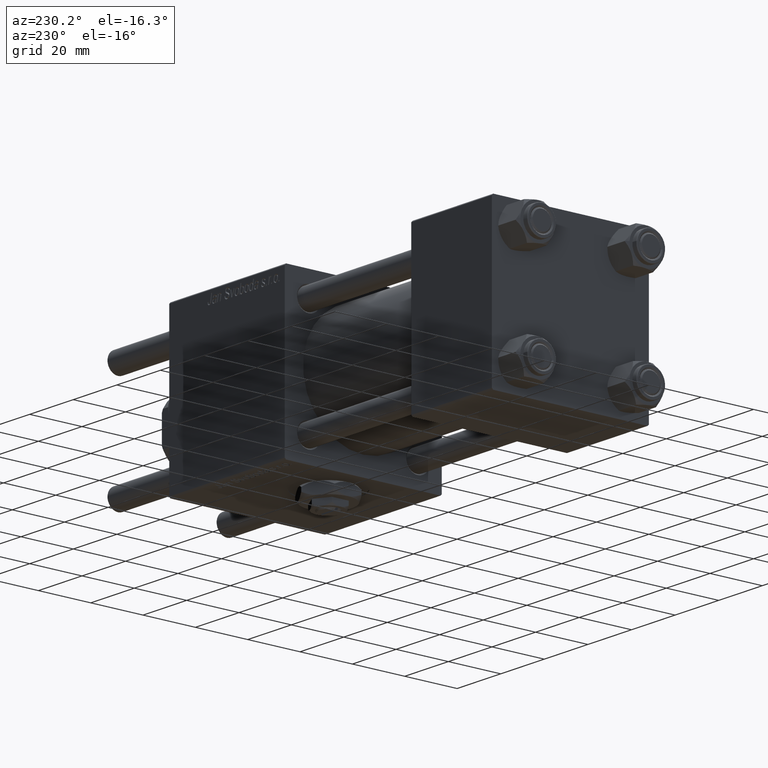
[diagram: clean part render]
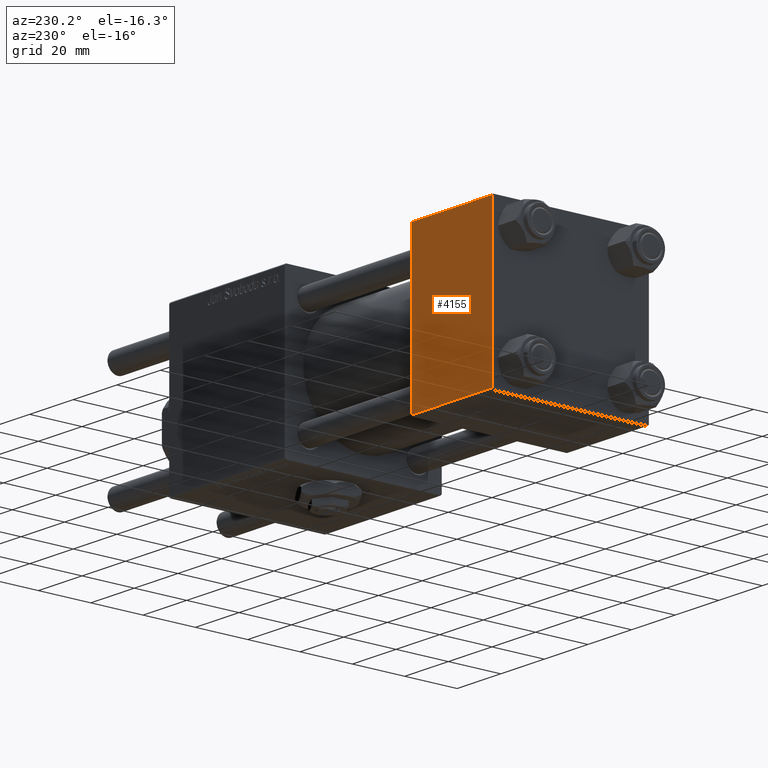
[diagram: same view with one face highlighted and labeled with its STEP entity id]
A machine part, auxiliary view. The second image highlights one B-rep face of the part: STEP entity #4155.
In plain terms, the highlighted planar face has unit normal (0, 1, 0).
Its self-contained STEP definition (entity closure, byte-faithful):
#1548 = LINE ( 'NONE', #46809, #37286 ) ;
#2855 = LINE ( 'NONE', #43997, #46002 ) ;
#3163 = CARTESIAN_POINT ( 'NONE',  ( 37.00000000000000000, 29.99999999999999289, 29.50000000000000000 ) ) ;
#4155 = ADVANCED_FACE ( 'NONE', ( #55867 ), #6150, .T. ) ;
#5976 = DIRECTION ( 'NONE',  ( 0.000000000000000000, 0.000000000000000000, -1.000000000000000000 ) ) ;
#6150 = PLANE ( 'NONE',  #21051 ) ;
#8192 = CARTESIAN_POINT ( 'NONE',  ( 37.00000000000000000, 29.99999999999999289, -29.50000000000000000 ) ) ;
#16016 = VERTEX_POINT ( 'NONE', #54293 ) ;
#17216 = EDGE_CURVE ( 'NONE', #48268, #33548, #1548, .T. ) ;
#17550 = CARTESIAN_POINT ( 'NONE',  ( 37.00000000000000000, 29.99999999999999289, 29.50000000000000000 ) ) ;
#18920 = EDGE_CURVE ( 'NONE', #33548, #20743, #57911, .T. ) ;
#19180 = CARTESIAN_POINT ( 'NONE',  ( 37.00000000000000000, 29.99999999999999289, 30.00000000000000000 ) ) ;
#20743 = VERTEX_POINT ( 'NONE', #48618 ) ;
#20761 = VECTOR ( 'NONE', #21817, 1000.000000000000000 ) ;
#21051 = AXIS2_PLACEMENT_3D ( 'NONE', #19180, #51136, #23930 ) ;
#21817 = DIRECTION ( 'NONE',  ( 1.000000000000000000, 0.000000000000000000, 0.000000000000000000 ) ) ;
#23476 = EDGE_CURVE ( 'NONE', #16016, #20743, #2855, .T. ) ;
#23930 = DIRECTION ( 'NONE',  ( 0.000000000000000000, -0.000000000000000000, 1.000000000000000000 ) ) ;
#26269 = LINE ( 'NONE', #3163, #20761 ) ;
#30676 = DIRECTION ( 'NONE',  ( 0.000000000000000000, 0.000000000000000000, -1.000000000000000000 ) ) ;
#31753 = ORIENTED_EDGE ( 'NONE', *, *, #37425, .T. ) ;
#33548 = VERTEX_POINT ( 'NONE', #51843 ) ;
#35131 = ORIENTED_EDGE ( 'NONE', *, *, #23476, .F. ) ;
#37286 = VECTOR ( 'NONE', #5976, 1000.000000000000000 ) ;
#37425 = EDGE_CURVE ( 'NONE', #16016, #48268, #26269, .T. ) ;
#39732 = ORIENTED_EDGE ( 'NONE', *, *, #17216, .T. ) ;
#43997 = CARTESIAN_POINT ( 'NONE',  ( 0.000000000000000000, 29.99999999999999289, 30.00000000000000000 ) ) ;
#46002 = VECTOR ( 'NONE', #30676, 1000.000000000000000 ) ;
#46809 = CARTESIAN_POINT ( 'NONE',  ( 37.00000000000000000, 29.99999999999999289, 30.00000000000000000 ) ) ;
#48268 = VERTEX_POINT ( 'NONE', #17550 ) ;
#48618 = CARTESIAN_POINT ( 'NONE',  ( 0.000000000000000000, 29.99999999999999289, -29.50000000000000000 ) ) ;
#49607 = DIRECTION ( 'NONE',  ( -1.000000000000000000, 0.000000000000000000, 0.000000000000000000 ) ) ;
#51136 = DIRECTION ( 'NONE',  ( -0.000000000000000000, 1.000000000000000000, 0.000000000000000000 ) ) ;
#51471 = VECTOR ( 'NONE', #49607, 1000.000000000000000 ) ;
#51843 = CARTESIAN_POINT ( 'NONE',  ( 37.00000000000000000, 29.99999999999999289, -29.50000000000000000 ) ) ;
#54293 = CARTESIAN_POINT ( 'NONE',  ( 0.000000000000000000, 29.99999999999999289, 29.50000000000000000 ) ) ;
#55598 = ORIENTED_EDGE ( 'NONE', *, *, #18920, .T. ) ;
#55867 = FACE_OUTER_BOUND ( 'NONE', #56673, .T. ) ;
#56673 = EDGE_LOOP ( 'NONE', ( #39732, #55598, #35131, #31753 ) ) ;
#57911 = LINE ( 'NONE', #8192, #51471 ) ;